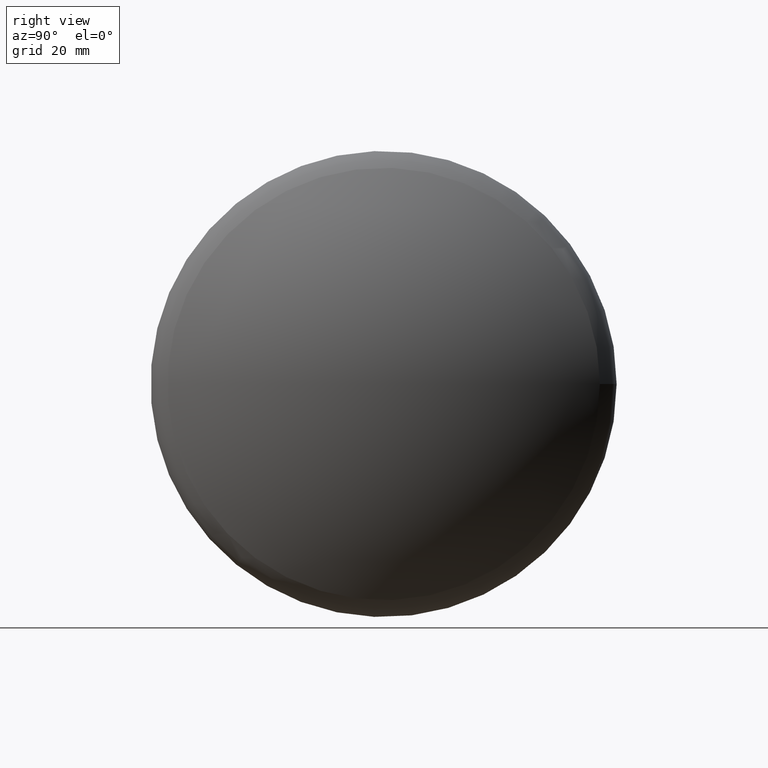
[diagram: clean part render]
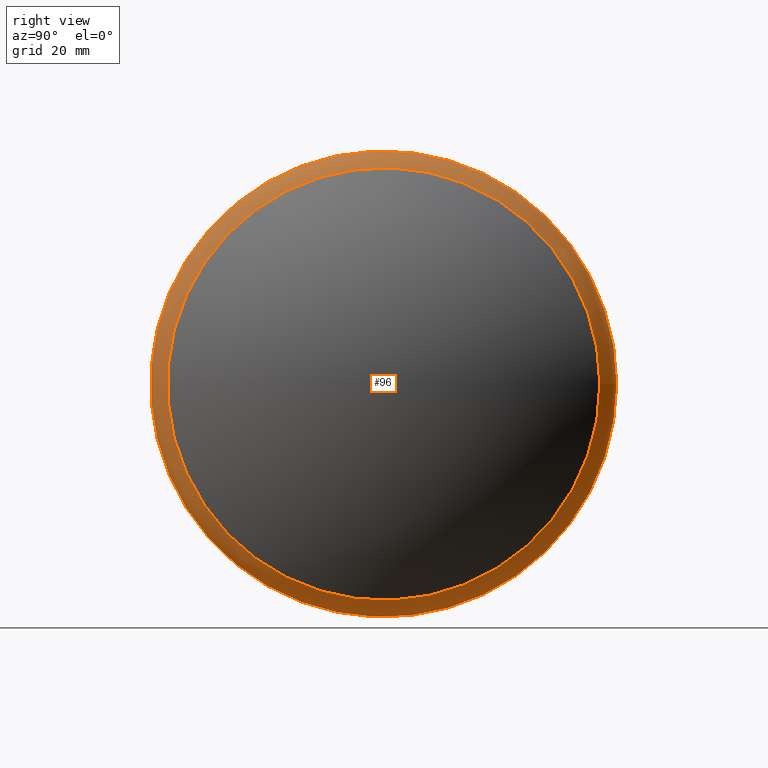
[diagram: same view with one face highlighted and labeled with its STEP entity id]
A machine part, right view. The second image highlights one B-rep face of the part: STEP entity #96.
In plain terms, the highlighted toroidal blend (fillet) surface has major radius 59 mm and minor (blend) radius 12.5 mm.
Its self-contained STEP definition (entity closure, byte-faithful):
#21=FACE_BOUND('',#38,.T.);
#28=FACE_OUTER_BOUND('',#37,.T.);
#37=EDGE_LOOP('',(#77));
#38=EDGE_LOOP('',(#78));
#53=CIRCLE('',#108,71.5);
#54=CIRCLE('',#109,66.3515462655589);
#61=VERTEX_POINT('',#162);
#62=VERTEX_POINT('',#164);
#69=EDGE_CURVE('',#61,#61,#53,.T.);
#70=EDGE_CURVE('',#62,#62,#54,.T.);
#77=ORIENTED_EDGE('',*,*,#69,.T.);
#78=ORIENTED_EDGE('',*,*,#70,.T.);
#93=TOROIDAL_SURFACE('',#107,59.,12.5);
#96=ADVANCED_FACE('',(#28,#21),#93,.T.);
#107=AXIS2_PLACEMENT_3D('',#161,#126,#127);
#108=AXIS2_PLACEMENT_3D('',#163,#128,#129);
#109=AXIS2_PLACEMENT_3D('',#165,#130,#131);
#126=DIRECTION('center_axis',(1.,9.97177066188586E-17,0.));
#127=DIRECTION('ref_axis',(0.,0.,-1.));
#128=DIRECTION('center_axis',(1.,9.97177066188586E-17,0.));
#129=DIRECTION('ref_axis',(9.31655685000131E-17,-1.,1.83697019872103E-16));
#130=DIRECTION('center_axis',(-1.,-9.97177066188586E-17,0.));
#131=DIRECTION('ref_axis',(9.31655685000131E-17,-1.,1.83697019872103E-16));
#161=CARTESIAN_POINT('Origin',(-31.6839091801785,-3.1594467601676E-15,0.));
#162=CARTESIAN_POINT('',(-31.6839091801785,71.5,-4.37811230695179E-15));
#163=CARTESIAN_POINT('Origin',(-31.6839091801785,-3.1594467601676E-15,0.));
#164=CARTESIAN_POINT('',(-21.5742718224218,66.3515462655589,-2.03143021881485E-14));
#165=CARTESIAN_POINT('Origin',(-21.5742718224218,-1.83157062610318E-15,
0.));